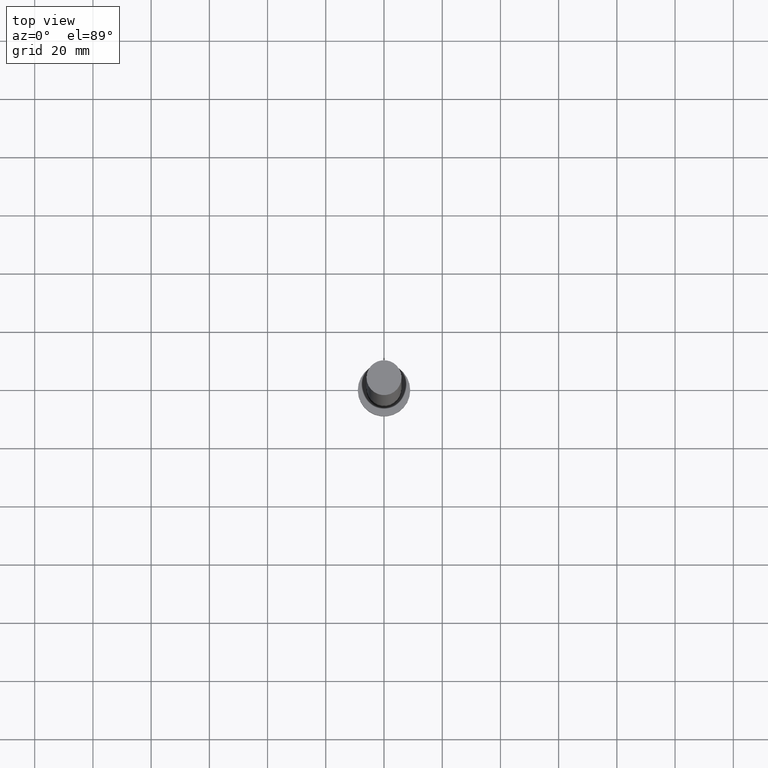
[diagram: clean part render]
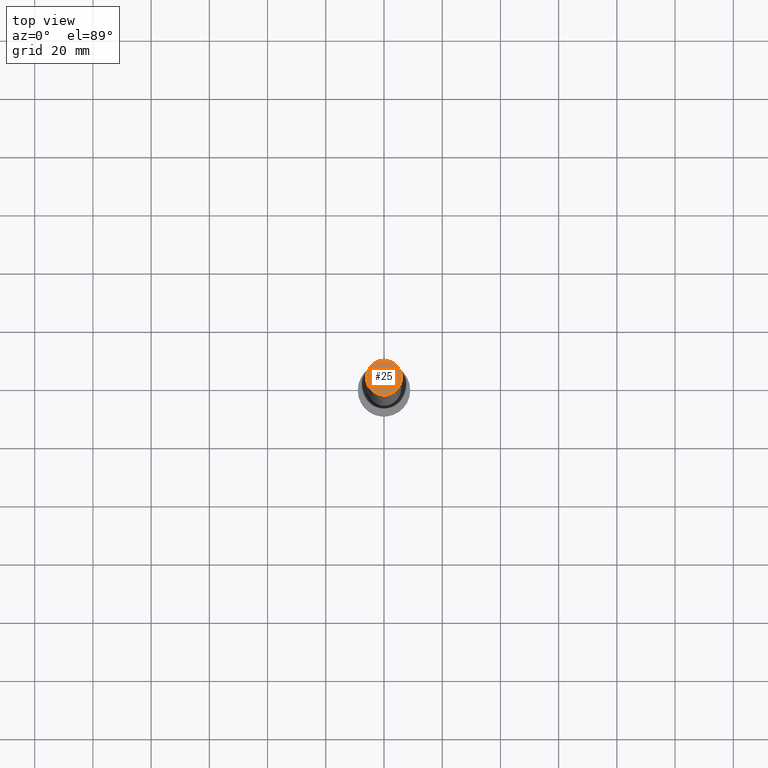
[diagram: same view with one face highlighted and labeled with its STEP entity id]
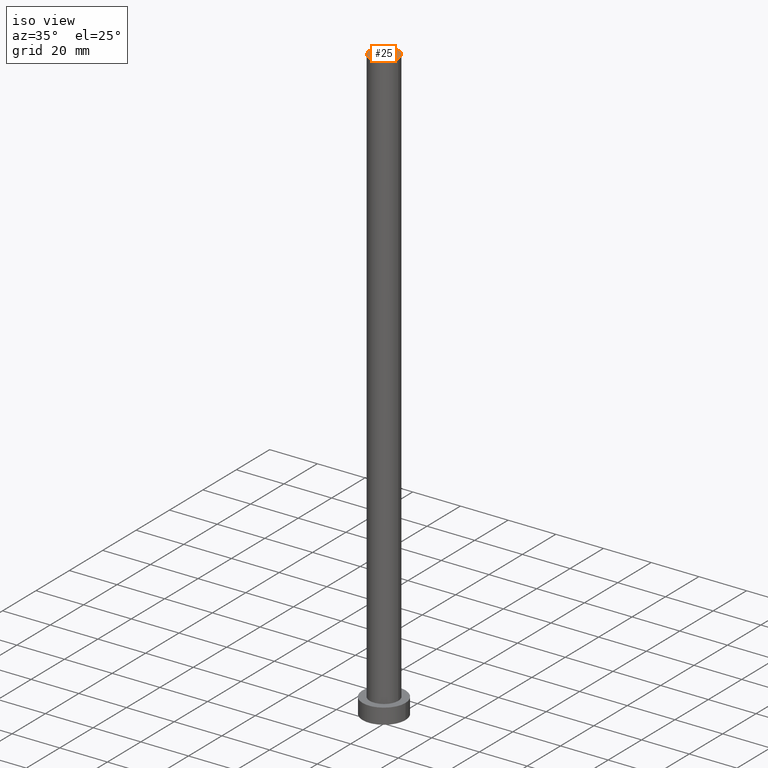
[diagram: same view with one face highlighted and labeled with its STEP entity id]
A machine part, top view. The second image highlights one B-rep face of the part: STEP entity #25.
A second angle (iso view) of the same face is appended — the face is thin or edge-on in the first view.
In plain terms, the highlighted planar face has unit normal (0, 0, 1).
Its self-contained STEP definition (entity closure, byte-faithful):
#3 = AXIS2_PLACEMENT_3D ( 'NONE', #93, #228, #164 ) ;
#22 = CIRCLE ( 'NONE', #196, 6.000000000000000888 ) ;
#25 = ADVANCED_FACE ( 'NONE', ( #175 ), #107, .T. ) ;
#60 = EDGE_CURVE ( 'NONE', #108, #241, #121, .T. ) ;
#73 = EDGE_LOOP ( 'NONE', ( #128, #182 ) ) ;
#77 = DIRECTION ( 'NONE',  ( 1.000000000000000000, 0.000000000000000000, 0.000000000000000000 ) ) ;
#80 = DIRECTION ( 'NONE',  ( 1.000000000000000000, 0.000000000000000000, 0.000000000000000000 ) ) ;
#85 = CARTESIAN_POINT ( 'NONE',  ( 0.000000000000000000, 0.000000000000000000, 250.0000000000000000 ) ) ;
#93 = CARTESIAN_POINT ( 'NONE',  ( 0.000000000000000000, 0.000000000000000000, 250.0000000000000000 ) ) ;
#104 = DIRECTION ( 'NONE',  ( 0.000000000000000000, 0.000000000000000000, 1.000000000000000000 ) ) ;
#107 = PLANE ( 'NONE',  #3 ) ;
#108 = VERTEX_POINT ( 'NONE', #162 ) ;
#121 = CIRCLE ( 'NONE', #154, 6.000000000000000888 ) ;
#128 = ORIENTED_EDGE ( 'NONE', *, *, #60, .T. ) ;
#153 = DIRECTION ( 'NONE',  ( 0.000000000000000000, 0.000000000000000000, 1.000000000000000000 ) ) ;
#154 = AXIS2_PLACEMENT_3D ( 'NONE', #207, #104, #77 ) ;
#162 = CARTESIAN_POINT ( 'NONE',  ( -6.000000000000000888, 0.000000000000000000, 250.0000000000000000 ) ) ;
#164 = DIRECTION ( 'NONE',  ( 1.000000000000000000, 0.000000000000000000, -0.000000000000000000 ) ) ;
#175 = FACE_OUTER_BOUND ( 'NONE', #73, .T. ) ;
#182 = ORIENTED_EDGE ( 'NONE', *, *, #232, .T. ) ;
#189 = CARTESIAN_POINT ( 'NONE',  ( 6.000000000000000888, 7.347880794884120722E-16, 250.0000000000000000 ) ) ;
#196 = AXIS2_PLACEMENT_3D ( 'NONE', #85, #153, #80 ) ;
#207 = CARTESIAN_POINT ( 'NONE',  ( 0.000000000000000000, 0.000000000000000000, 250.0000000000000000 ) ) ;
#228 = DIRECTION ( 'NONE',  ( 0.000000000000000000, 0.000000000000000000, 1.000000000000000000 ) ) ;
#232 = EDGE_CURVE ( 'NONE', #241, #108, #22, .T. ) ;
#241 = VERTEX_POINT ( 'NONE', #189 ) ;